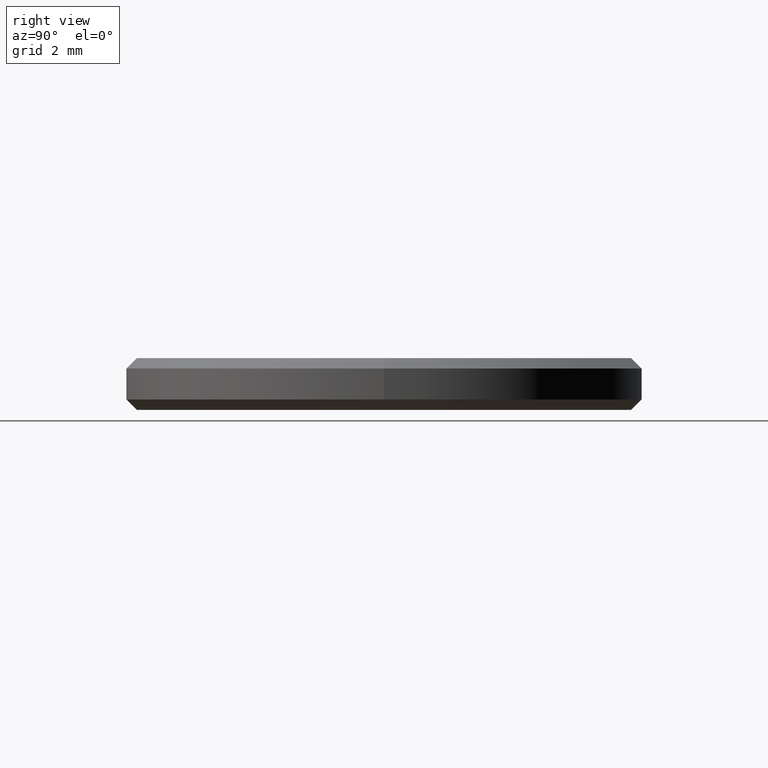
[diagram: clean part render]
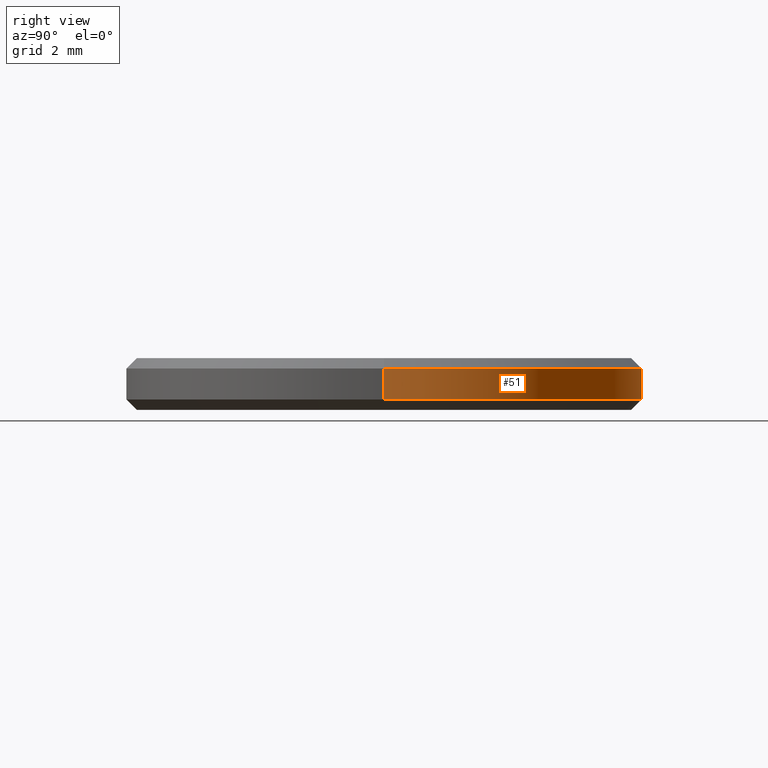
[diagram: same view with one face highlighted and labeled with its STEP entity id]
A machine part, right view. The second image highlights one B-rep face of the part: STEP entity #51.
In plain terms, the highlighted cylindrical surface (partial cylindrical patch) has radius 5 mm, axis along (-0, -0, -1).
Its self-contained STEP definition (entity closure, byte-faithful):
#6 = AXIS2_PLACEMENT_3D ( 'NONE', #80, #127, #113 ) ;
#10 = EDGE_CURVE ( 'NONE', #31, #140, #55, .T. ) ;
#25 = CARTESIAN_POINT ( 'NONE',  ( 0.000000000000000000, 0.000000000000000000, 1.000000000000000000 ) ) ;
#29 = VERTEX_POINT ( 'NONE', #228 ) ;
#31 = VERTEX_POINT ( 'NONE', #169 ) ;
#33 = VECTOR ( 'NONE', #206, 1000.000000000000000 ) ;
#37 = CARTESIAN_POINT ( 'NONE',  ( 5.000000000000000000, 6.123233995736766282E-16, 1.000000000000000000 ) ) ;
#39 = DIRECTION ( 'NONE',  ( -0.000000000000000000, -0.000000000000000000, -1.000000000000000000 ) ) ;
#50 = ORIENTED_EDGE ( 'NONE', *, *, #172, .T. ) ;
#51 = ADVANCED_FACE ( 'NONE', ( #188 ), #128, .T. ) ;
#52 = AXIS2_PLACEMENT_3D ( 'NONE', #181, #232, #233 ) ;
#55 = CIRCLE ( 'NONE', #6, 5.000000000000000000 ) ;
#69 = EDGE_CURVE ( 'NONE', #140, #220, #171, .T. ) ;
#76 = CARTESIAN_POINT ( 'NONE',  ( -5.000000000000000000, 0.000000000000000000, 1.000000000000000000 ) ) ;
#80 = CARTESIAN_POINT ( 'NONE',  ( 0.000000000000000000, 0.000000000000000000, 0.8000000000000012657 ) ) ;
#96 = DIRECTION ( 'NONE',  ( -1.000000000000000000, 0.000000000000000000, 0.000000000000000000 ) ) ;
#113 = DIRECTION ( 'NONE',  ( 1.000000000000000000, 0.000000000000000000, 0.000000000000000000 ) ) ;
#119 = EDGE_CURVE ( 'NONE', #31, #29, #125, .T. ) ;
#125 = LINE ( 'NONE', #76, #33 ) ;
#127 = DIRECTION ( 'NONE',  ( 0.000000000000000000, 0.000000000000000000, -1.000000000000000000 ) ) ;
#128 = CYLINDRICAL_SURFACE ( 'NONE', #212, 5.000000000000000000 ) ;
#135 = CARTESIAN_POINT ( 'NONE',  ( 5.000000000000000000, 6.123233995736766282E-16, 0.1999999999999996503 ) ) ;
#140 = VERTEX_POINT ( 'NONE', #146 ) ;
#142 = VECTOR ( 'NONE', #39, 1000.000000000000000 ) ;
#146 = CARTESIAN_POINT ( 'NONE',  ( 5.000000000000000000, 6.123233995736766282E-16, 0.8000000000000012657 ) ) ;
#169 = CARTESIAN_POINT ( 'NONE',  ( -5.000000000000000000, 0.000000000000000000, 0.8000000000000012657 ) ) ;
#171 = LINE ( 'NONE', #37, #142 ) ;
#172 = EDGE_CURVE ( 'NONE', #220, #29, #207, .T. ) ;
#180 = ORIENTED_EDGE ( 'NONE', *, *, #69, .T. ) ;
#181 = CARTESIAN_POINT ( 'NONE',  ( 0.000000000000000000, 0.000000000000000000, 0.1999999999999996503 ) ) ;
#188 = FACE_OUTER_BOUND ( 'NONE', #199, .T. ) ;
#194 = DIRECTION ( 'NONE',  ( -0.000000000000000000, -0.000000000000000000, -1.000000000000000000 ) ) ;
#199 = EDGE_LOOP ( 'NONE', ( #240, #180, #50, #203 ) ) ;
#203 = ORIENTED_EDGE ( 'NONE', *, *, #119, .F. ) ;
#206 = DIRECTION ( 'NONE',  ( -0.000000000000000000, -0.000000000000000000, -1.000000000000000000 ) ) ;
#207 = CIRCLE ( 'NONE', #52, 5.000000000000000000 ) ;
#212 = AXIS2_PLACEMENT_3D ( 'NONE', #25, #194, #96 ) ;
#220 = VERTEX_POINT ( 'NONE', #135 ) ;
#228 = CARTESIAN_POINT ( 'NONE',  ( -5.000000000000000000, 0.000000000000000000, 0.1999999999999996503 ) ) ;
#232 = DIRECTION ( 'NONE',  ( -0.000000000000000000, -0.000000000000000000, 1.000000000000000000 ) ) ;
#233 = DIRECTION ( 'NONE',  ( 1.000000000000000000, 0.000000000000000000, 0.000000000000000000 ) ) ;
#240 = ORIENTED_EDGE ( 'NONE', *, *, #10, .T. ) ;